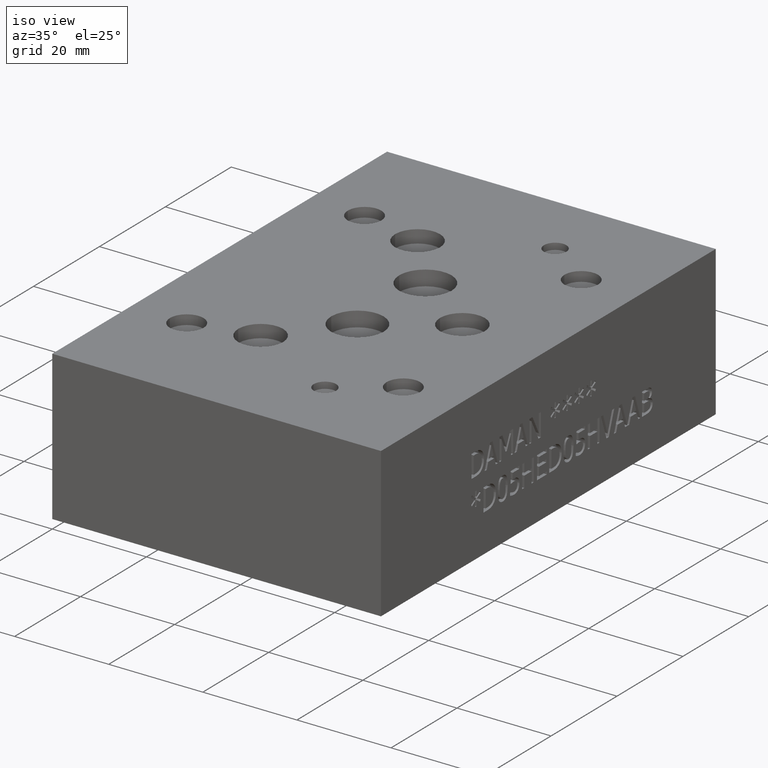
[diagram: clean part render]
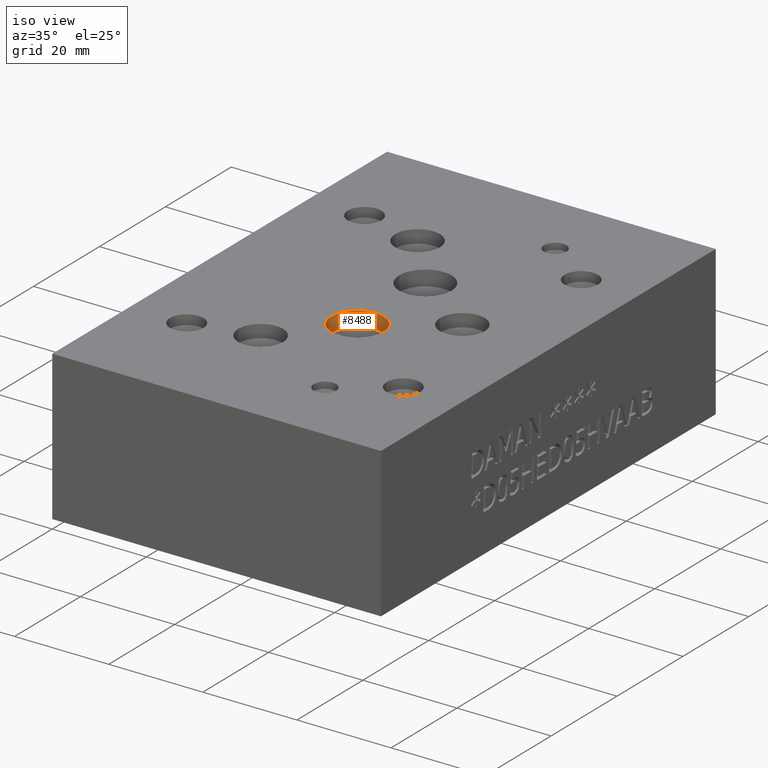
[diagram: same view with one face highlighted and labeled with its STEP entity id]
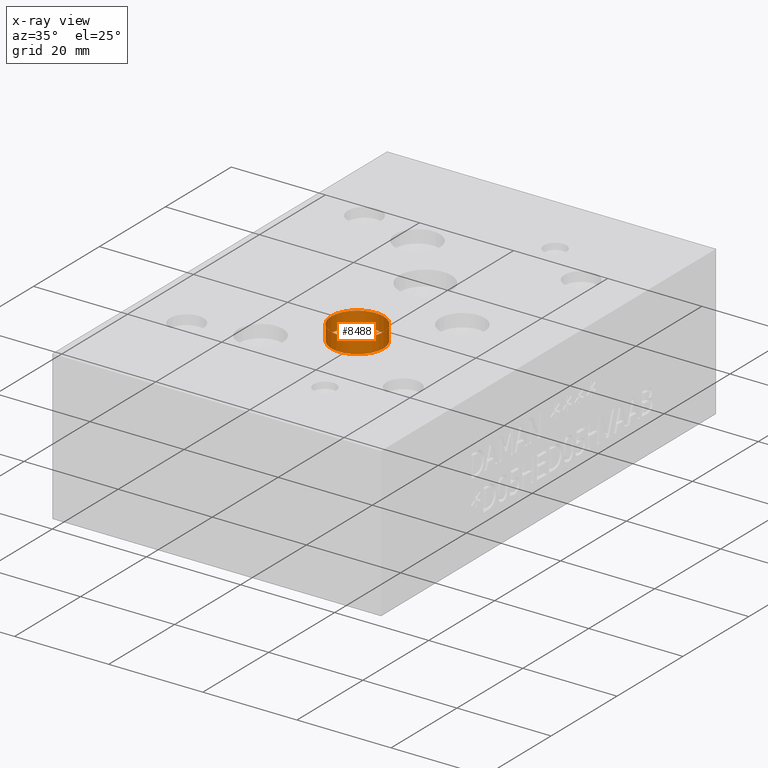
[diagram: x-ray of the same camera — body ghosted, the highlighted face saturated]
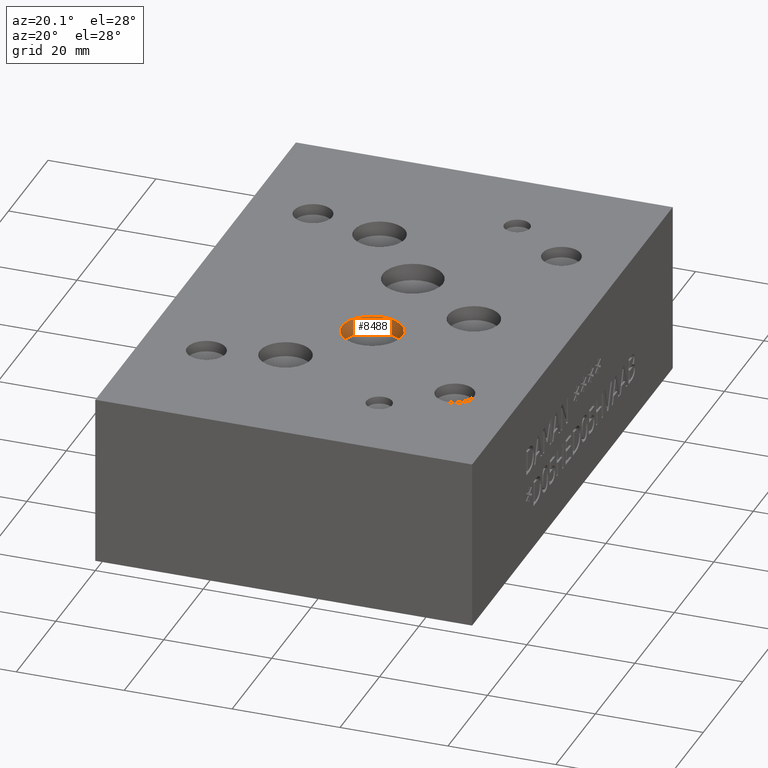
[diagram: same view with one face highlighted and labeled with its STEP entity id]
A machine part, iso view. The second image highlights one B-rep face of the part: STEP entity #8488.
The next image is the same camera in x-ray: the body ghosted, the highlighted face saturated — about 0% of this face is hidden behind the body in this view.
A second angle (auxiliary view) of the same face is appended — the face is thin or edge-on in the first view.
In plain terms, the highlighted cylindrical surface (bore or boss wall) has radius 5.5626 mm, axis along (0, 0, 1).
Its self-contained STEP definition (entity closure, byte-faithful):
#39=CYLINDRICAL_SURFACE('',#8935,5.5626);
#136=CIRCLE('',#8933,5.5626);
#137=CIRCLE('',#8934,5.5626);
#138=CIRCLE('',#8936,5.5626);
#139=CIRCLE('',#8937,5.5626);
#913=FACE_OUTER_BOUND('',#1379,.T.);
#1379=EDGE_LOOP('',(#7333,#7334,#7335,#7336,#7337,#7338));
#2273=LINE('',#14201,#3147);
#3147=VECTOR('',#10669,5.5626);
#3935=VERTEX_POINT('',#14190);
#3936=VERTEX_POINT('',#14191);
#3938=VERTEX_POINT('',#14197);
#3939=VERTEX_POINT('',#14198);
#5086=EDGE_CURVE('',#3935,#3936,#136,.T.);
#5088=EDGE_CURVE('',#3936,#3935,#137,.T.);
#5089=EDGE_CURVE('',#3938,#3939,#138,.T.);
#5090=EDGE_CURVE('',#3939,#3938,#139,.T.);
#5091=EDGE_CURVE('',#3939,#3936,#2273,.T.);
#7333=ORIENTED_EDGE('',*,*,#5089,.F.);
#7334=ORIENTED_EDGE('',*,*,#5090,.F.);
#7335=ORIENTED_EDGE('',*,*,#5091,.T.);
#7336=ORIENTED_EDGE('',*,*,#5086,.F.);
#7337=ORIENTED_EDGE('',*,*,#5088,.F.);
#7338=ORIENTED_EDGE('',*,*,#5091,.F.);
#8488=ADVANCED_FACE('',(#913),#39,.F.);
#8933=AXIS2_PLACEMENT_3D('',#14192,#10658,#10659);
#8934=AXIS2_PLACEMENT_3D('',#14195,#10661,#10662);
#8935=AXIS2_PLACEMENT_3D('',#14196,#10663,#10664);
#8936=AXIS2_PLACEMENT_3D('',#14199,#10665,#10666);
#8937=AXIS2_PLACEMENT_3D('',#14200,#10667,#10668);
#10658=DIRECTION('center_axis',(0.,0.,1.));
#10659=DIRECTION('ref_axis',(1.,0.,0.));
#10661=DIRECTION('center_axis',(0.,0.,1.));
#10662=DIRECTION('ref_axis',(1.,0.,0.));
#10663=DIRECTION('center_axis',(0.,0.,1.));
#10664=DIRECTION('ref_axis',(1.,0.,0.));
#10665=DIRECTION('center_axis',(0.,0.,-1.));
#10666=DIRECTION('ref_axis',(1.,0.,0.));
#10667=DIRECTION('center_axis',(0.,0.,-1.));
#10668=DIRECTION('ref_axis',(1.,0.,0.));
#10669=DIRECTION('',(0.,0.,-1.));
#14190=CARTESIAN_POINT('',(42.06748,40.46982,28.53843));
#14191=CARTESIAN_POINT('',(30.94228,40.46982,28.53843));
#14192=CARTESIAN_POINT('Origin',(36.50488,40.46982,28.53843));
#14195=CARTESIAN_POINT('Origin',(36.50488,40.46982,28.53843));
#14196=CARTESIAN_POINT('Origin',(36.50488,40.46982,30.144215));
#14197=CARTESIAN_POINT('',(42.06748,40.46982,31.75));
#14198=CARTESIAN_POINT('',(30.94228,40.46982,31.75));
#14199=CARTESIAN_POINT('Origin',(36.50488,40.46982,31.75));
#14200=CARTESIAN_POINT('Origin',(36.50488,40.46982,31.75));
#14201=CARTESIAN_POINT('',(30.94228,40.46982,30.144215));